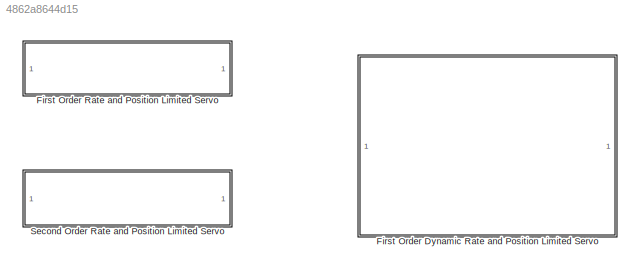
MODEL slx_4862a8644d15
KIND library
CONFIG AbsTol = auto
CONFIG EnableMultiTasking = off
CONFIG FixedStep = auto
CONFIG MaxStep = auto
CONFIG MinStep = auto
CONFIG RelTol = 1e-3
CONFIG SampleTimeConstraint = Unconstrained
CONFIG SolverName = VariableStepAuto
CONFIG StartTime = 0.0
CONFIG StopTime = 10.0
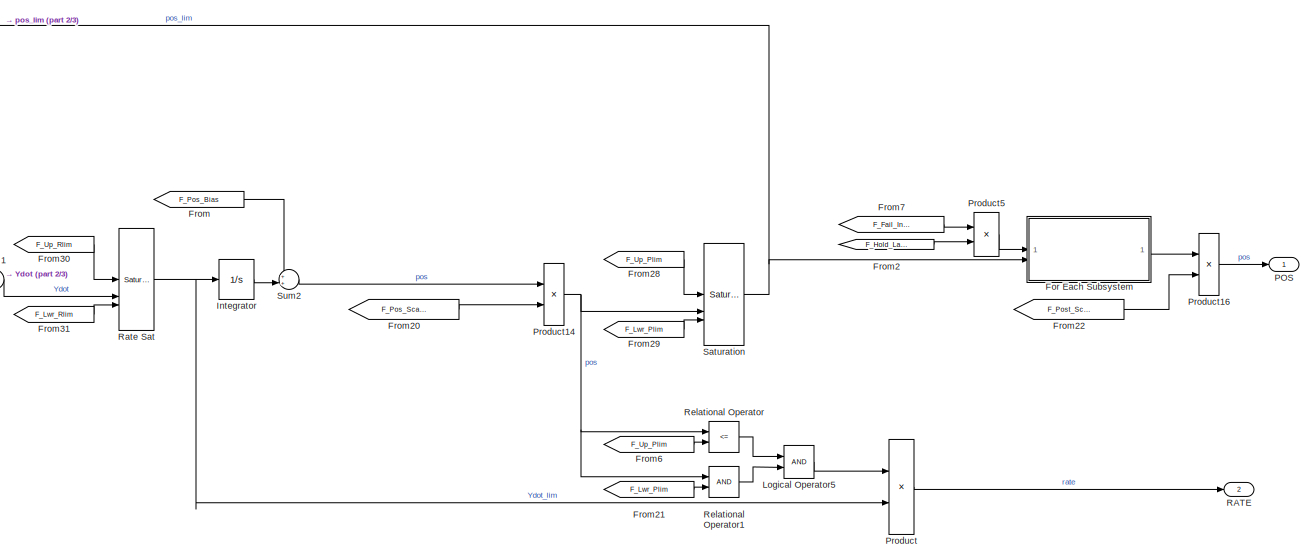
[diagram: First Order Dynamic Rate and Position Limited Servo - part 1/3, top right region]
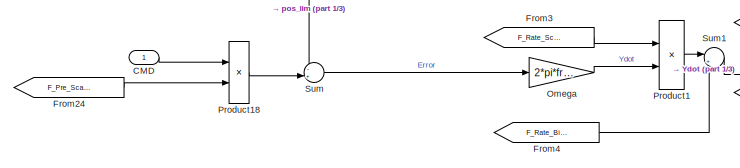
[diagram: First Order Dynamic Rate and Position Limited Servo - part 2/3, top left region]
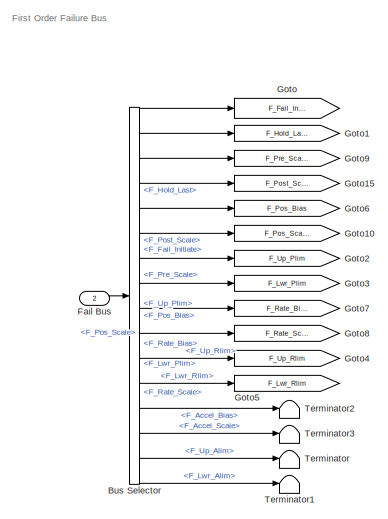
[diagram: First Order Dynamic Rate and Position Limited Servo - part 3/3, bottom center region]
BLOCK [SubSystem] First Order Dynamic Rate and Position Limited Servo
BLOCK [BusSelector] First Order Dynamic Rate and Position Limited Servo/Bus Selector
  OutputSignals = F_Fail_Initiate,F_Hold_Last,F_Pre_Scale,F_Post_Scale,F_Pos_Bias,F_Pos_Scale,F_Up_Plim,F_Lwr_Plim,F_Rate_Bias,F_Rate_Scale,F_Up_Rlim,F_Lwr_Rlim,F_Accel_Bias,F_Accel_Scale,F_Up_Alim,F_Lwr_Alim
BLOCK [Inport] First Order Dynamic Rate and Position Limited Servo/CMD
BLOCK [Inport] First Order Dynamic Rate and Position Limited Servo/Fail Bus
  Port = 2
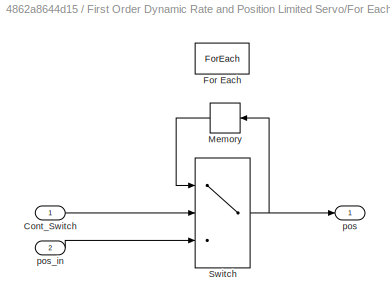
BLOCK [SubSystem] First Order Dynamic Rate and Position Limited Servo/For Each Subsystem
  TreatAsAtomicUnit = on
BLOCK [Inport] First Order Dynamic Rate and Position Limited Servo/For Each Subsystem/Cont_Switch
  Partition = on
  PartitionDimension = 1
  PartitionOffset = 0
  PartitionWidth = 1
BLOCK [ForEach] First Order Dynamic Rate and Position Limited Servo/For Each Subsystem/For Each
  DisableCoverage = on
BLOCK [Memory] First Order Dynamic Rate and Position Limited Servo/For Each Subsystem/Memory
BLOCK [Switch] First Order Dynamic Rate and Position Limited Servo/For Each Subsystem/Switch
  Criteria = u2 ~= 0
  InputSameDT = off
  SaturateOnIntegerOverflow = off
BLOCK [Outport] First Order Dynamic Rate and Position Limited Servo/For Each Subsystem/pos
  ConcatenationDimension = 1
BLOCK [Inport] First Order Dynamic Rate and Position Limited Servo/For Each Subsystem/pos_in
  Partition = on
  PartitionDimension = 1
  PartitionOffset = 0
  PartitionWidth = 1
  Port = 2
BLOCK [From] First Order Dynamic Rate and Position Limited Servo/From
  GotoTag = F_Pos_Bias
BLOCK [From] First Order Dynamic Rate and Position Limited Servo/From2
  GotoTag = F_Hold_Last
BLOCK [From] First Order Dynamic Rate and Position Limited Servo/From20
  GotoTag = F_Pos_Scale
BLOCK [From] First Order Dynamic Rate and Position Limited Servo/From21
  GotoTag = F_Lwr_Plim
BLOCK [From] First Order Dynamic Rate and Position Limited Servo/From22
  GotoTag = F_Post_Scale
BLOCK [From] First Order Dynamic Rate and Position Limited Servo/From24
  GotoTag = F_Pre_Scale
BLOCK [From] First Order Dynamic Rate and Position Limited Servo/From28
  GotoTag = F_Up_Plim
BLOCK [From] First Order Dynamic Rate and Position Limited Servo/From29
  GotoTag = F_Lwr_Plim
BLOCK [From] First Order Dynamic Rate and Position Limited Servo/From3
  GotoTag = F_Rate_Scale
BLOCK [From] First Order Dynamic Rate and Position Limited Servo/From30
  GotoTag = F_Up_Rlim
BLOCK [From] First Order Dynamic Rate and Position Limited Servo/From31
  GotoTag = F_Lwr_Rlim
BLOCK [From] First Order Dynamic Rate and Position Limited Servo/From4
  GotoTag = F_Rate_Bias
BLOCK [From] First Order Dynamic Rate and Position Limited Servo/From6
  GotoTag = F_Up_Plim
BLOCK [From] First Order Dynamic Rate and Position Limited Servo/From7
  GotoTag = F_Fail_Initiate
BLOCK [Goto] First Order Dynamic Rate and Position Limited Servo/Goto
  GotoTag = F_Fail_Initiate
BLOCK [Goto] First Order Dynamic Rate and Position Limited Servo/Goto1
  GotoTag = F_Hold_Last
BLOCK [Goto] First Order Dynamic Rate and Position Limited Servo/Goto10
  GotoTag = F_Pos_Scale
BLOCK [Goto] First Order Dynamic Rate and Position Limited Servo/Goto15
  GotoTag = F_Post_Scale
BLOCK [Goto] First Order Dynamic Rate and Position Limited Servo/Goto2
  GotoTag = F_Up_Plim
BLOCK [Goto] First Order Dynamic Rate and Position Limited Servo/Goto3
  GotoTag = F_Lwr_Plim
BLOCK [Goto] First Order Dynamic Rate and Position Limited Servo/Goto4
  GotoTag = F_Up_Rlim
BLOCK [Goto] First Order Dynamic Rate and Position Limited Servo/Goto5
  GotoTag = F_Lwr_Rlim
BLOCK [Goto] First Order Dynamic Rate and Position Limited Servo/Goto6
  GotoTag = F_Pos_Bias
BLOCK [Goto] First Order Dynamic Rate and Position Limited Servo/Goto7
  GotoTag = F_Rate_Bias
BLOCK [Goto] First Order Dynamic Rate and Position Limited Servo/Goto8
  GotoTag = F_Rate_Scale
BLOCK [Goto] First Order Dynamic Rate and Position Limited Servo/Goto9
  GotoTag = F_Pre_Scale
BLOCK [Integrator] First Order Dynamic Rate and Position Limited Servo/Integrator
  ContinuousStateAttributes = StateName
  IgnoreLimit = on
  InitialCondition = Bias
  LowerSaturationLimit = POS_lo
  UpperSaturationLimit = POS_hi
BLOCK [Logic] First Order Dynamic Rate and Position Limited Servo/Logical Operator5
  AllPortsSameDT = off
  OutDataTypeStr = boolean
BLOCK [Gain] First Order Dynamic Rate and Position Limited Servo/Omega
  Gain = 2*pi*freq
  OutDataTypeStr = Inherit: Same as input
  ParamDataTypeStr = Inherit: Same as input
  SaturateOnIntegerOverflow = on
BLOCK [Outport] First Order Dynamic Rate and Position Limited Servo/POS
  VectorParamsAs1DForOutWhenUnconnected = off
BLOCK [Product] First Order Dynamic Rate and Position Limited Servo/Product
  RndMeth = Zero
BLOCK [Product] First Order Dynamic Rate and Position Limited Servo/Product1
BLOCK [Product] First Order Dynamic Rate and Position Limited Servo/Product14
BLOCK [Product] First Order Dynamic Rate and Position Limited Servo/Product16
BLOCK [Product] First Order Dynamic Rate and Position Limited Servo/Product18
BLOCK [Product] First Order Dynamic Rate and Position Limited Servo/Product5
BLOCK [Outport] First Order Dynamic Rate and Position Limited Servo/RATE
  Port = 2
BLOCK [Reference] First Order Dynamic Rate and Position Limited Servo/Rate Sat  REF=simulink/Discontinuities/Saturation
Dynamic
  SourceBlock = simulink/Discontinuities/Saturation\nDynamic
  SourceType = Saturation Dynamic
BLOCK [RelationalOperator] First Order Dynamic Rate and Position Limited Servo/Relational Operator
  InputSameDT = off
  Operator = <=
  OutDataTypeStr = boolean
  RndMeth = Simplest
BLOCK [RelationalOperator] First Order Dynamic Rate and Position Limited Servo/Relational Operator1
  InputSameDT = off
  OutDataTypeStr = boolean
  RndMeth = Simplest
BLOCK [Reference] First Order Dynamic Rate and Position Limited Servo/Saturation  REF=simulink/Discontinuities/Saturation
Dynamic
  SourceBlock = simulink/Discontinuities/Saturation\nDynamic
  SourceType = Saturation Dynamic
BLOCK [Sum] First Order Dynamic Rate and Position Limited Servo/Sum
  InputSameDT = on
  Inputs = -+|
  NameLocation = top
  OutDataTypeStr = Inherit: Same as first input
  SaturateOnIntegerOverflow = on
BLOCK [Sum] First Order Dynamic Rate and Position Limited Servo/Sum1
  InputSameDT = on
  Inputs = |++
  NameLocation = top
  OutDataTypeStr = Inherit: Same as first input
  SaturateOnIntegerOverflow = on
BLOCK [Sum] First Order Dynamic Rate and Position Limited Servo/Sum2
  Inputs = ++|
BLOCK [Terminator] First Order Dynamic Rate and Position Limited Servo/Terminator
BLOCK [Terminator] First Order Dynamic Rate and Position Limited Servo/Terminator1
BLOCK [Terminator] First Order Dynamic Rate and Position Limited Servo/Terminator2
BLOCK [Terminator] First Order Dynamic Rate and Position Limited Servo/Terminator3
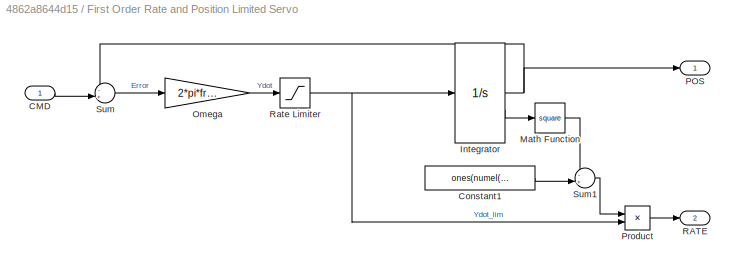
BLOCK [SubSystem] First Order Rate and Position Limited Servo
BLOCK [Inport] First Order Rate and Position Limited Servo/CMD
BLOCK [Constant] First Order Rate and Position Limited Servo/Constant1
  Value = ones(numel(freq),1)
  VectorParams1D = off
BLOCK [Integrator] First Order Rate and Position Limited Servo/Integrator
  ContinuousStateAttributes = StateName
  IgnoreLimit = on
  InitialCondition = Bias
  LimitOutput = on
  LowerSaturationLimit = POS_lo
  ShowSaturationPort = on
  UpperSaturationLimit = POS_hi
BLOCK [Math] First Order Rate and Position Limited Servo/Math Function
  Operator = square
  SignedPower = on
BLOCK [Gain] First Order Rate and Position Limited Servo/Omega
  Gain = 2*pi*freq
  OutDataTypeStr = Inherit: Same as input
  ParamDataTypeStr = Inherit: Same as input
  SaturateOnIntegerOverflow = on
BLOCK [Outport] First Order Rate and Position Limited Servo/POS
  VectorParamsAs1DForOutWhenUnconnected = off
BLOCK [Product] First Order Rate and Position Limited Servo/Product
  RndMeth = Zero
BLOCK [Outport] First Order Rate and Position Limited Servo/RATE
  Port = 2
BLOCK [Saturate] First Order Rate and Position Limited Servo/Rate Limiter
  LowerLimit = -RL
  UpperLimit = RL
BLOCK [Sum] First Order Rate and Position Limited Servo/Sum
  InputSameDT = on
  Inputs = -+|
  NameLocation = top
  OutDataTypeStr = Inherit: Same as first input
  SaturateOnIntegerOverflow = on
BLOCK [Sum] First Order Rate and Position Limited Servo/Sum1
  InputSameDT = on
  Inputs = -+|
  NameLocation = top
  OutDataTypeStr = Inherit: Same as first input
  SaturateOnIntegerOverflow = on
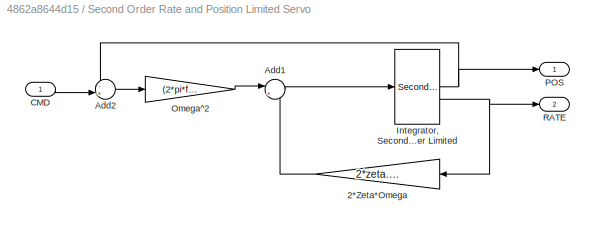
BLOCK [SubSystem] Second Order Rate and Position Limited Servo
BLOCK [Gain] Second Order Rate and Position Limited Servo/2*Zeta*Omega
  Gain = 2*zeta.*(2*pi*freq)
BLOCK [Sum] Second Order Rate and Position Limited Servo/Add1
  Inputs = |+-
BLOCK [Sum] Second Order Rate and Position Limited Servo/Add2
  Inputs = -+|
BLOCK [Inport] Second Order Rate and Position Limited Servo/CMD
BLOCK [SecondOrderIntegrator] Second Order Rate and Position Limited Servo/Integrator, Second-Order Limited
  ICX = Bias
  IgnoreStateLimitsAndResetForLinearization = on
  LimitDXDT = on
  LimitX = on
  LowerLimitDXDT = -RL
  LowerLimitX = POS_lo
  StateNameDXDT = RateStateName
  StateNameX = PosStateName
  UpperLimitDXDT = RL
  UpperLimitX = POS_hi
BLOCK [Gain] Second Order Rate and Position Limited Servo/Omega^2
  Gain = (2*pi*freq).*(2*pi*freq)
BLOCK [Outport] Second Order Rate and Position Limited Servo/POS
BLOCK [Outport] Second Order Rate and Position Limited Servo/RATE
  Port = 2
ANNOTATION First Order Dynamic Rate and Position Limited Servo: First Order Failure Bus
LINE First Order Dynamic Rate and Position Limited Servo/Bus Selector:1 -> First Order Dynamic Rate and Position Limited Servo/Goto:1
LINE First Order Dynamic Rate and Position Limited Servo/Bus Selector:10 -> First Order Dynamic Rate and Position Limited Servo/Goto8:1
LINE First Order Dynamic Rate and Position Limited Servo/Bus Selector:11 -> First Order Dynamic Rate and Position Limited Servo/Goto4:1
LINE First Order Dynamic Rate and Position Limited Servo/Bus Selector:12 -> First Order Dynamic Rate and Position Limited Servo/Goto5:1
LINE First Order Dynamic Rate and Position Limited Servo/Bus Selector:13 -> First Order Dynamic Rate and Position Limited Servo/Terminator2:1
LINE First Order Dynamic Rate and Position Limited Servo/Bus Selector:14 -> First Order Dynamic Rate and Position Limited Servo/Terminator3:1
LINE First Order Dynamic Rate and Position Limited Servo/Bus Selector:15 -> First Order Dynamic Rate and Position Limited Servo/Terminator:1
LINE First Order Dynamic Rate and Position Limited Servo/Bus Selector:16 -> First Order Dynamic Rate and Position Limited Servo/Terminator1:1
LINE First Order Dynamic Rate and Position Limited Servo/Bus Selector:2 -> First Order Dynamic Rate and Position Limited Servo/Goto1:1
LINE First Order Dynamic Rate and Position Limited Servo/Bus Selector:3 -> First Order Dynamic Rate and Position Limited Servo/Goto9:1
LINE First Order Dynamic Rate and Position Limited Servo/Bus Selector:4 -> First Order Dynamic Rate and Position Limited Servo/Goto15:1
LINE First Order Dynamic Rate and Position Limited Servo/Bus Selector:5 -> First Order Dynamic Rate and Position Limited Servo/Goto6:1
LINE First Order Dynamic Rate and Position Limited Servo/Bus Selector:6 -> First Order Dynamic Rate and Position Limited Servo/Goto10:1
LINE First Order Dynamic Rate and Position Limited Servo/Bus Selector:7 -> First Order Dynamic Rate and Position Limited Servo/Goto2:1
LINE First Order Dynamic Rate and Position Limited Servo/Bus Selector:8 -> First Order Dynamic Rate and Position Limited Servo/Goto3:1
LINE First Order Dynamic Rate and Position Limited Servo/Bus Selector:9 -> First Order Dynamic Rate and Position Limited Servo/Goto7:1
LINE First Order Dynamic Rate and Position Limited Servo/CMD:1 -> First Order Dynamic Rate and Position Limited Servo/Product18:1
LINE First Order Dynamic Rate and Position Limited Servo/Fail Bus:1 -> First Order Dynamic Rate and Position Limited Servo/Bus Selector:1
LINE First Order Dynamic Rate and Position Limited Servo/For Each Subsystem/Cont_Switch:1 -> First Order Dynamic Rate and Position Limited Servo/For Each Subsystem/Switch:2
LINE First Order Dynamic Rate and Position Limited Servo/For Each Subsystem/Memory:1 -> First Order Dynamic Rate and Position Limited Servo/For Each Subsystem/Switch:1
NET First Order Dynamic Rate and Position Limited Servo/For Each Subsystem/Switch:1 -> First Order Dynamic Rate and Position Limited Servo/For Each Subsystem/Memory:1, First Order Dynamic Rate and Position Limited Servo/For Each Subsystem/pos:1
LINE First Order Dynamic Rate and Position Limited Servo/For Each Subsystem/pos_in:1 -> First Order Dynamic Rate and Position Limited Servo/For Each Subsystem/Switch:3
LINE First Order Dynamic Rate and Position Limited Servo/For Each Subsystem:1 -> First Order Dynamic Rate and Position Limited Servo/Product16:1
LINE First Order Dynamic Rate and Position Limited Servo/From20:1 -> First Order Dynamic Rate and Position Limited Servo/Product14:2
LINE First Order Dynamic Rate and Position Limited Servo/From21:1 -> First Order Dynamic Rate and Position Limited Servo/Relational Operator1:2
LINE First Order Dynamic Rate and Position Limited Servo/From22:1 -> First Order Dynamic Rate and Position Limited Servo/Product16:2
LINE First Order Dynamic Rate and Position Limited Servo/From24:1 -> First Order Dynamic Rate and Position Limited Servo/Product18:2
LINE First Order Dynamic Rate and Position Limited Servo/From28:1 -> First Order Dynamic Rate and Position Limited Servo/Saturation:1
LINE First Order Dynamic Rate and Position Limited Servo/From29:1 -> First Order Dynamic Rate and Position Limited Servo/Saturation:3
LINE First Order Dynamic Rate and Position Limited Servo/From2:1 -> First Order Dynamic Rate and Position Limited Servo/Product5:2
LINE First Order Dynamic Rate and Position Limited Servo/From30:1 -> First Order Dynamic Rate and Position Limited Servo/Rate Sat:1
LINE First Order Dynamic Rate and Position Limited Servo/From31:1 -> First Order Dynamic Rate and Position Limited Servo/Rate Sat:3
LINE First Order Dynamic Rate and Position Limited Servo/From3:1 -> First Order Dynamic Rate and Position Limited Servo/Product1:1
LINE First Order Dynamic Rate and Position Limited Servo/From4:1 -> First Order Dynamic Rate and Position Limited Servo/Sum1:2
LINE First Order Dynamic Rate and Position Limited Servo/From6:1 -> First Order Dynamic Rate and Position Limited Servo/Relational Operator:2
LINE First Order Dynamic Rate and Position Limited Servo/From7:1 -> First Order Dynamic Rate and Position Limited Servo/Product5:1
LINE First Order Dynamic Rate and Position Limited Servo/From:1 -> First Order Dynamic Rate and Position Limited Servo/Sum2:1
LINE First Order Dynamic Rate and Position Limited Servo/Integrator:1 -> First Order Dynamic Rate and Position Limited Servo/Sum2:2
LINE First Order Dynamic Rate and Position Limited Servo/Logical Operator5:1 -> First Order Dynamic Rate and Position Limited Servo/Product:1
LINE First Order Dynamic Rate and Position Limited Servo/Omega:1 -> First Order Dynamic Rate and Position Limited Servo/Product1:2
NET First Order Dynamic Rate and Position Limited Servo/Product14:1 -> First Order Dynamic Rate and Position Limited Servo/Relational Operator1:1, First Order Dynamic Rate and Position Limited Servo/Relational Operator:1, First Order Dynamic Rate and Position Limited Servo/Saturation:2
LINE First Order Dynamic Rate and Position Limited Servo/Product16:1 -> First Order Dynamic Rate and Position Limited Servo/POS:1
LINE First Order Dynamic Rate and Position Limited Servo/Product18:1 -> First Order Dynamic Rate and Position Limited Servo/Sum:2
LINE First Order Dynamic Rate and Position Limited Servo/Product1:1 -> First Order Dynamic Rate and Position Limited Servo/Sum1:1
LINE First Order Dynamic Rate and Position Limited Servo/Product5:1 -> First Order Dynamic Rate and Position Limited Servo/For Each Subsystem:1
LINE First Order Dynamic Rate and Position Limited Servo/Product:1 -> First Order Dynamic Rate and Position Limited Servo/RATE:1
NET First Order Dynamic Rate and Position Limited Servo/Rate Sat:1 -> First Order Dynamic Rate and Position Limited Servo/Integrator:1, First Order Dynamic Rate and Position Limited Servo/Product:2
LINE First Order Dynamic Rate and Position Limited Servo/Relational Operator1:1 -> First Order Dynamic Rate and Position Limited Servo/Logical Operator5:2
LINE First Order Dynamic Rate and Position Limited Servo/Relational Operator:1 -> First Order Dynamic Rate and Position Limited Servo/Logical Operator5:1
NET First Order Dynamic Rate and Position Limited Servo/Saturation:1 -> First Order Dynamic Rate and Position Limited Servo/For Each Subsystem:2, First Order Dynamic Rate and Position Limited Servo/Sum:1
LINE First Order Dynamic Rate and Position Limited Servo/Sum1:1 -> First Order Dynamic Rate and Position Limited Servo/Rate Sat:2
LINE First Order Dynamic Rate and Position Limited Servo/Sum2:1 -> First Order Dynamic Rate and Position Limited Servo/Product14:1
LINE First Order Dynamic Rate and Position Limited Servo/Sum:1 -> First Order Dynamic Rate and Position Limited Servo/Omega:1
LINE First Order Rate and Position Limited Servo/CMD:1 -> First Order Rate and Position Limited Servo/Sum:2
LINE First Order Rate and Position Limited Servo/Constant1:1 -> First Order Rate and Position Limited Servo/Sum1:2
NET First Order Rate and Position Limited Servo/Integrator:1 -> First Order Rate and Position Limited Servo/POS:1, First Order Rate and Position Limited Servo/Sum:1
LINE First Order Rate and Position Limited Servo/Integrator:2 -> First Order Rate and Position Limited Servo/Math Function:1
LINE First Order Rate and Position Limited Servo/Math Function:1 -> First Order Rate and Position Limited Servo/Sum1:1
LINE First Order Rate and Position Limited Servo/Omega:1 -> First Order Rate and Position Limited Servo/Rate Limiter:1
LINE First Order Rate and Position Limited Servo/Product:1 -> First Order Rate and Position Limited Servo/RATE:1
NET First Order Rate and Position Limited Servo/Rate Limiter:1 -> First Order Rate and Position Limited Servo/Integrator:1, First Order Rate and Position Limited Servo/Product:2
LINE First Order Rate and Position Limited Servo/Sum1:1 -> First Order Rate and Position Limited Servo/Product:1
LINE First Order Rate and Position Limited Servo/Sum:1 -> First Order Rate and Position Limited Servo/Omega:1
LINE Second Order Rate and Position Limited Servo/2*Zeta*Omega:1 -> Second Order Rate and Position Limited Servo/Add1:2
LINE Second Order Rate and Position Limited Servo/Add1:1 -> Second Order Rate and Position Limited Servo/Integrator, Second-Order Limited:1
LINE Second Order Rate and Position Limited Servo/Add2:1 -> Second Order Rate and Position Limited Servo/Omega^2:1
LINE Second Order Rate and Position Limited Servo/CMD:1 -> Second Order Rate and Position Limited Servo/Add2:2
NET Second Order Rate and Position Limited Servo/Integrator, Second-Order Limited:1 -> Second Order Rate and Position Limited Servo/Add2:1, Second Order Rate and Position Limited Servo/POS:1
NET Second Order Rate and Position Limited Servo/Integrator, Second-Order Limited:2 -> Second Order Rate and Position Limited Servo/2*Zeta*Omega:1, Second Order Rate and Position Limited Servo/RATE:1
LINE Second Order Rate and Position Limited Servo/Omega^2:1 -> Second Order Rate and Position Limited Servo/Add1:1
note: NET lines group one-source signal fan-out (src -> all destinations, sorted); 1:1 wires keep LINE
